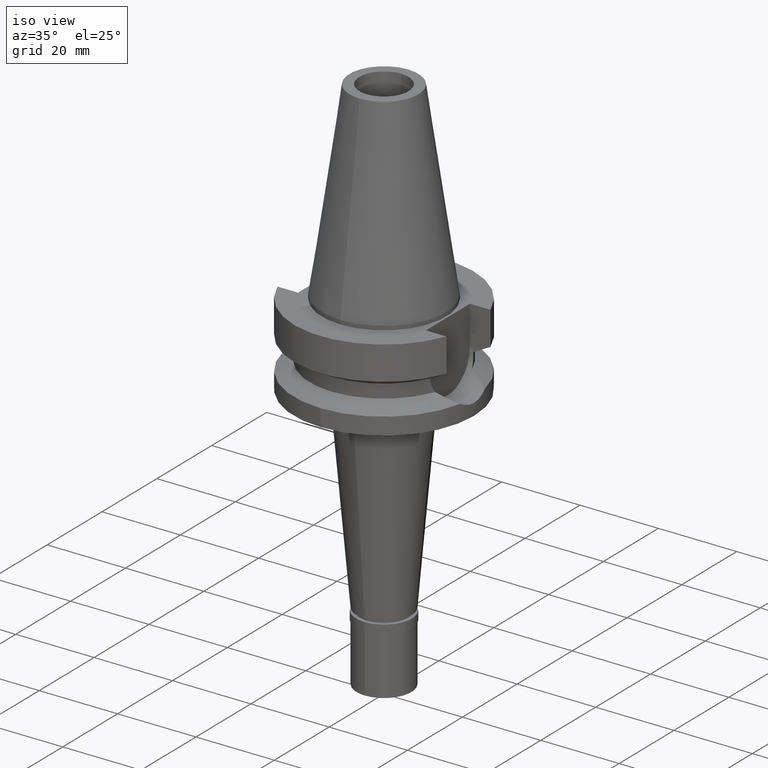
[diagram: clean part render]
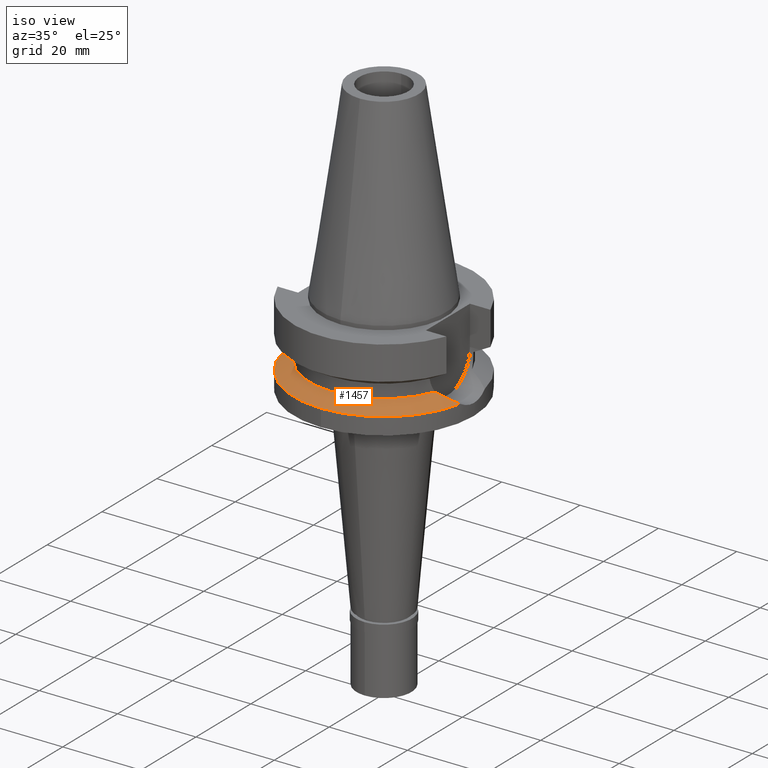
[diagram: same view with one face highlighted and labeled with its STEP entity id]
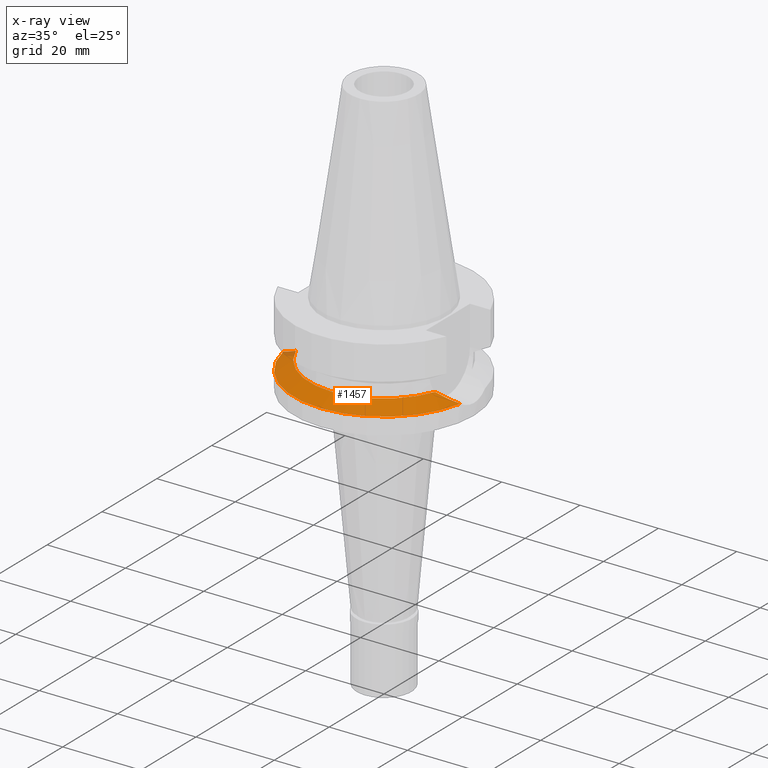
[diagram: x-ray of the same camera — body ghosted, the highlighted face saturated]
A machine part, iso view. The second image highlights one B-rep face of the part: STEP entity #1457.
The next image is the same camera in x-ray: the body ghosted, the highlighted face saturated — about 2% of this face is hidden behind the body in this view.
In plain terms, the highlighted conical surface has half-angle 60 deg.
Its self-contained STEP definition (entity closure, byte-faithful):
#122 = CARTESIAN_POINT ( 'NONE',  ( -21.37344794592065611, -5.343258989458440134, -17.05846002341978718 ) ) ;
#261 = DIRECTION ( 'NONE',  ( 0.0000000000000000000, 0.0000000000000000000, 1.000000000000000000 ) ) ;
#326 = CARTESIAN_POINT ( 'NONE',  ( 22.55786346208000026, -4.488072640470000430, -17.63279163029000074 ) ) ;
#390 = VERTEX_POINT ( 'NONE', #1924 ) ;
#495 = CONICAL_SURFACE ( 'NONE', #1668, 21.00000000000000000, 1.047197551196400456 ) ;
#542 = CARTESIAN_POINT ( 'NONE',  ( 17.75736593456000278, -6.758398853743999624, -15.32339055352999857 ) ) ;
#551 = AXIS2_PLACEMENT_3D ( 'NONE', #2004, #2864, #1087 ) ;
#597 = DIRECTION ( 'NONE',  ( 0.0000000000000000000, 0.0000000000000000000, -1.000000000000000000 ) ) ;
#641 = AXIS2_PLACEMENT_3D ( 'NONE', #1521, #597, #2682 ) ;
#649 = ORIENTED_EDGE ( 'NONE', *, *, #1142, .F. ) ;
#700 = DIRECTION ( 'NONE',  ( 0.0000000000000000000, -1.000000000000000000, 0.0000000000000000000 ) ) ;
#883 = CARTESIAN_POINT ( 'NONE',  ( 0.0000000000000000000, 1.022848384030000006E-14, -16.47809109191000232 ) ) ;
#914 = ORIENTED_EDGE ( 'NONE', *, *, #2184, .F. ) ;
#1003 = DIRECTION ( 'NONE',  ( 0.0000000000000000000, -1.000000000000000000, 0.0000000000000000000 ) ) ;
#1034 = CARTESIAN_POINT ( 'NONE',  ( -19.77328210341399028, -6.137069160786499111, -16.28355951929838596 ) ) ;
#1087 = DIRECTION ( 'NONE',  ( 0.0000000000000000000, -1.000000000000000000, 0.0000000000000000000 ) ) ;
#1142 = EDGE_CURVE ( 'NONE', #2387, #1258, #2246, .T. ) ;
#1153 = AXIS2_PLACEMENT_3D ( 'NONE', #1784, #261, #700 ) ;
#1220 = CARTESIAN_POINT ( 'NONE',  ( -22.55786346208000026, -4.488072640470000430, -17.63279163029000074 ) ) ;
#1258 = VERTEX_POINT ( 'NONE', #1270 ) ;
#1270 = CARTESIAN_POINT ( 'NONE',  ( 17.75736593456000278, -6.758398853743999624, -15.32339055352999857 ) ) ;
#1312 = CARTESIAN_POINT ( 'NONE',  ( -17.75736593456000278, -6.758398853743999624, -15.32339055352999857 ) ) ;
#1422 = EDGE_LOOP ( 'NONE', ( #2234, #1981, #2225, #649, #914 ) ) ;
#1433 = VERTEX_POINT ( 'NONE', #2933 ) ;
#1451 = CARTESIAN_POINT ( 'NONE',  ( 19.77328210352562365, -6.137069160740233009, -16.28355951936991630 ) ) ;
#1456 = DIRECTION ( 'NONE',  ( 0.0000000000000000000, 0.0000000000000000000, -1.000000000000000000 ) ) ;
#1457 = ADVANCED_FACE ( 'NONE', ( #2064 ), #495, .T. ) ;
#1484 = VERTEX_POINT ( 'NONE', #1220 ) ;
#1494 = CIRCLE ( 'NONE', #551, 23.00000000000000000 ) ;
#1521 = CARTESIAN_POINT ( 'NONE',  ( 0.0000000000000000000, 1.022848384030000006E-14, -17.63279163029000074 ) ) ;
#1646 = CARTESIAN_POINT ( 'NONE',  ( -17.75736593456000278, -6.758398853743999624, -15.32339055352999857 ) ) ;
#1668 = AXIS2_PLACEMENT_3D ( 'NONE', #883, #1456, #1003 ) ;
#1784 = CARTESIAN_POINT ( 'NONE',  ( 0.0000000000000000000, 1.022848384030000006E-14, -15.32339055352999857 ) ) ;
#1924 = CARTESIAN_POINT ( 'NONE',  ( 22.55786346208000026, -4.488072640470000430, -17.63279163029000074 ) ) ;
#1981 = ORIENTED_EDGE ( 'NONE', *, *, #2743, .F. ) ;
#2004 = CARTESIAN_POINT ( 'NONE',  ( 0.0000000000000000000, 1.022848384030000006E-14, -17.63279163029000074 ) ) ;
#2064 = FACE_OUTER_BOUND ( 'NONE', #1422, .T. ) ;
#2184 = EDGE_CURVE ( 'NONE', #1484, #2387, #2901, .T. ) ;
#2195 = EDGE_CURVE ( 'NONE', #1258, #390, #2622, .T. ) ;
#2225 = ORIENTED_EDGE ( 'NONE', *, *, #2195, .F. ) ;
#2234 = ORIENTED_EDGE ( 'NONE', *, *, #2811, .F. ) ;
#2246 = CIRCLE ( 'NONE', #1153, 19.00000000000000000 ) ;
#2362 = CARTESIAN_POINT ( 'NONE',  ( 21.37344794603228948, -5.343258989387728697, -17.05846002346729051 ) ) ;
#2387 = VERTEX_POINT ( 'NONE', #1312 ) ;
#2622 = B_SPLINE_CURVE_WITH_KNOTS ( 'NONE', 3,
 ( #542, #1451, #2362, #326 ),
 .UNSPECIFIED., .F., .F.,
 ( 4, 4 ),
 ( 0.0000000000000000000, 1.000000000000000000 ),
 .UNSPECIFIED. ) ;
#2682 = DIRECTION ( 'NONE',  ( 0.9807766722643714852, -0.1951335930638943839, 0.0000000000000000000 ) ) ;
#2743 = EDGE_CURVE ( 'NONE', #390, #1433, #2821, .T. ) ;
#2811 = EDGE_CURVE ( 'NONE', #1433, #1484, #1494, .T. ) ;
#2821 = CIRCLE ( 'NONE', #641, 23.00000000000001066 ) ;
#2851 = CARTESIAN_POINT ( 'NONE',  ( -22.55786346208000026, -4.488072640470000430, -17.63279163029000074 ) ) ;
#2864 = DIRECTION ( 'NONE',  ( 0.0000000000000000000, 0.0000000000000000000, -1.000000000000000000 ) ) ;
#2901 = B_SPLINE_CURVE_WITH_KNOTS ( 'NONE', 3,
 ( #2851, #122, #1034, #1646 ),
 .UNSPECIFIED., .F., .F.,
 ( 4, 4 ),
 ( 0.0000000000000000000, 1.000000000000000000 ),
 .UNSPECIFIED. ) ;
#2933 = CARTESIAN_POINT ( 'NONE',  ( 0.0000000000000000000, -23.00000000000000000, -17.63279163029000074 ) ) ;